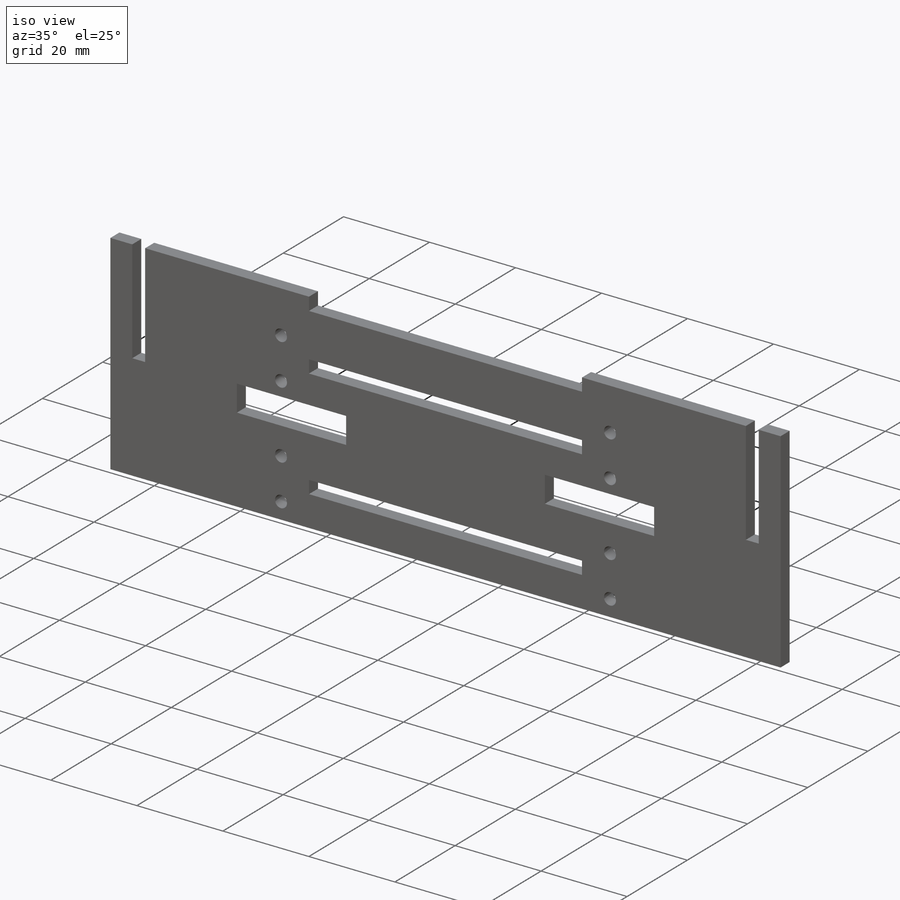
[diagram: iso view]
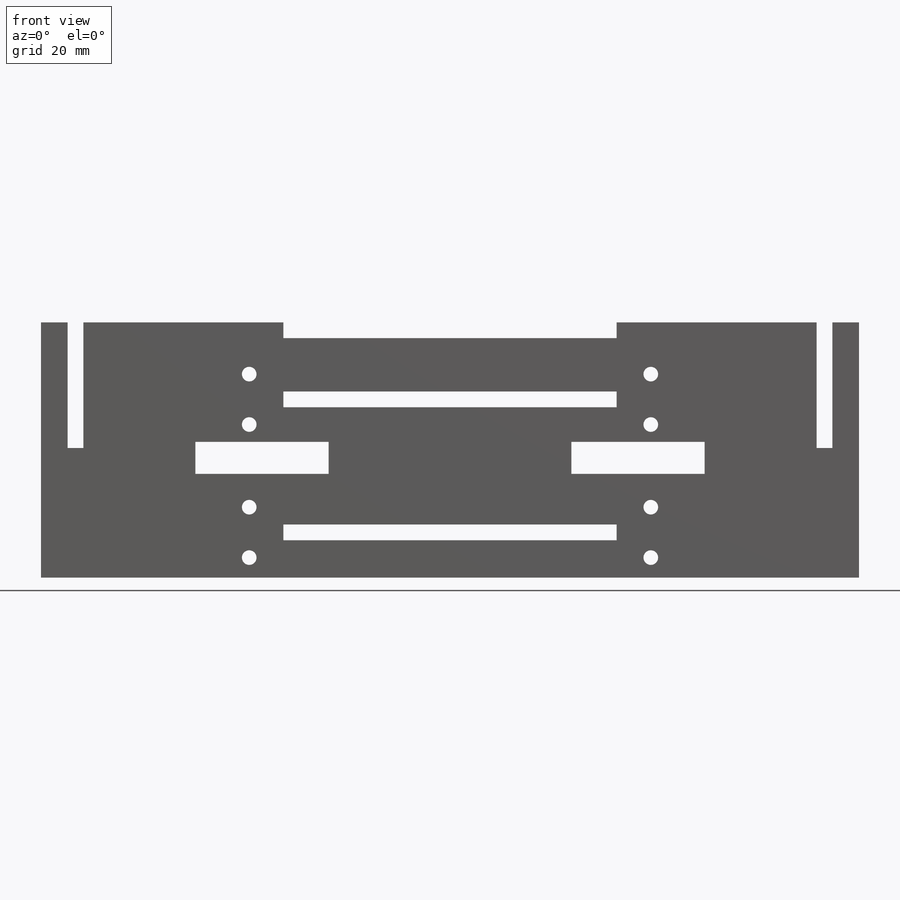
[diagram: front view]
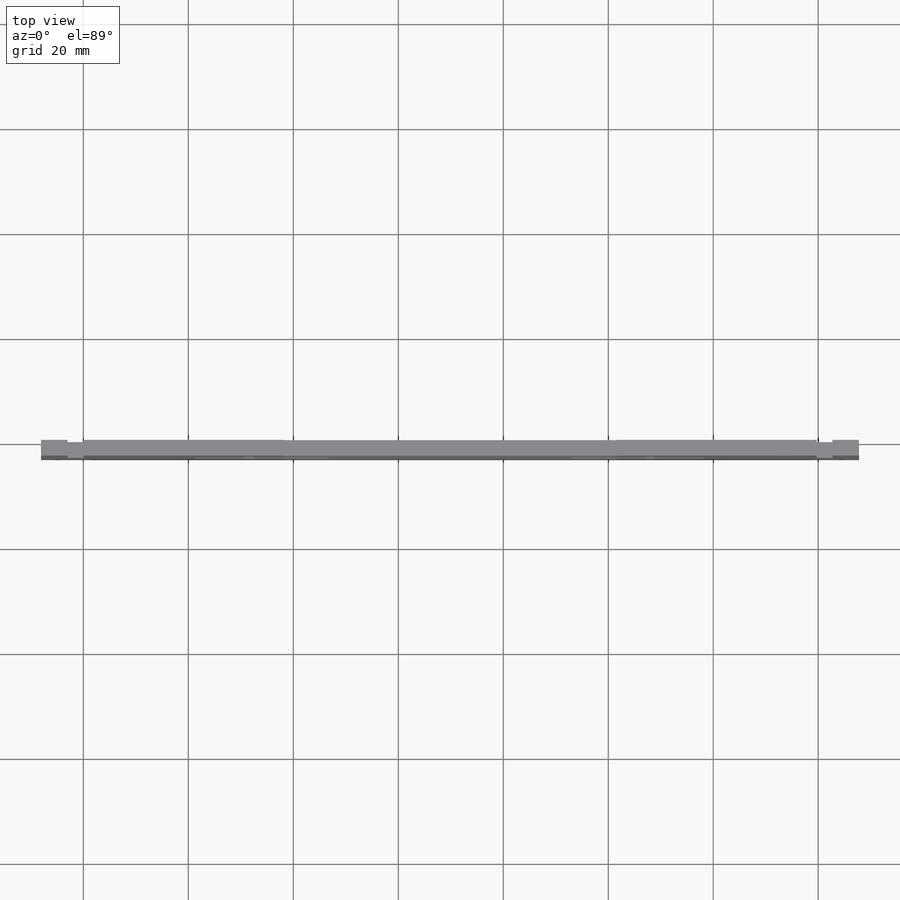
[diagram: top view]
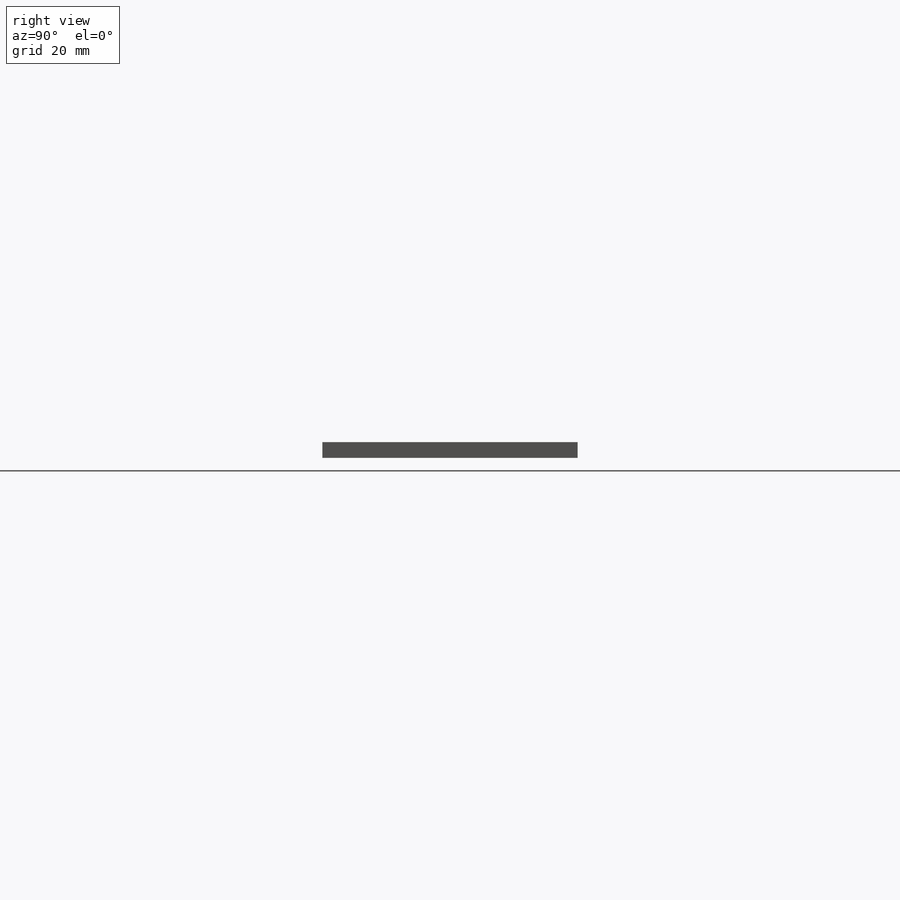
[diagram: right view]
SOLIDWORKS PART (.sldprt)
format: sldprt  version: not decoded by parser v0  size: 345,088 bytes
history: native  units: mm
features: sketch x7, cut_extrude x4, extrude x3, material x1 (+11 scaffold rows collapsed)
feature tree (26):
  scaffold x11  (default folders/planes/origin — collapsed)
  material  "Material <not specified>"
  sketch  "Sketch1"  dims[D1=139.7mm D2=6.35mm D3=12.7mm D4=12.7mm D5=2.9972mm D7=22.352mm D8=5.08mm D9=2.9972mm D6=10.16mm]
  extrude  "Boss-Extrude1"  Depth=2.9972mm
  sketch  "Sketch2"  dims[c1.D2=2.794mm c1.D3=2.794mm c1.D1=74.4474mm c2.D3=1.905mm c2.D1=79.2988mm]
  cut_extrude  "Cut-Extrude1"  [1 undecoded]
  sketch  "Sketch3"  dims[D1=25.4mm]
  extrude  "Boss-Extrude2"  [1 undecoded]
  sketch  "Sketch4"  dims[D1=0.762mm]
  extrude  "Boss-Extrude3"  [1 undecoded]
  sketch  "Sketch5"  dims[D1=2.9972mm D2=12.7mm]
  cut_extrude  "Cut-Extrude2"  [1 undecoded]
  sketch  "Sketch6"  dims[c1.D1=21.336mm c1.D2=21.336mm c1.D3=25.4mm c1.D4=25.4mm c1.D5=6.096mm c1.D6=9.652mm c1.D7=5.08mm c1.D8=6.096mm c2.D1=21.336mm]
  sketch  "Sketch7"
  cut_extrude  "Cut-Extrude3"  [1 undecoded]
  cut_extrude  "Cut-Extrude4"  [1 undecoded]
decode coverage: 7 of 14 modeling features carry decoded parameters
note: 6 parameter values undecoded
summary: no parameter record found for 6 features
note: suppression state not decoded; provenance and decode notes live in map.json
